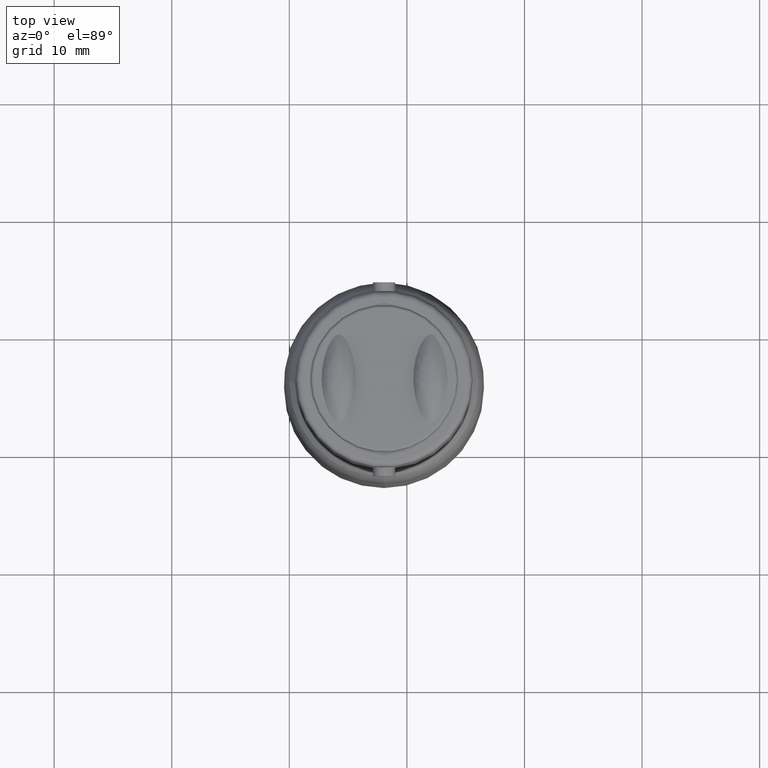
[diagram: clean part render]
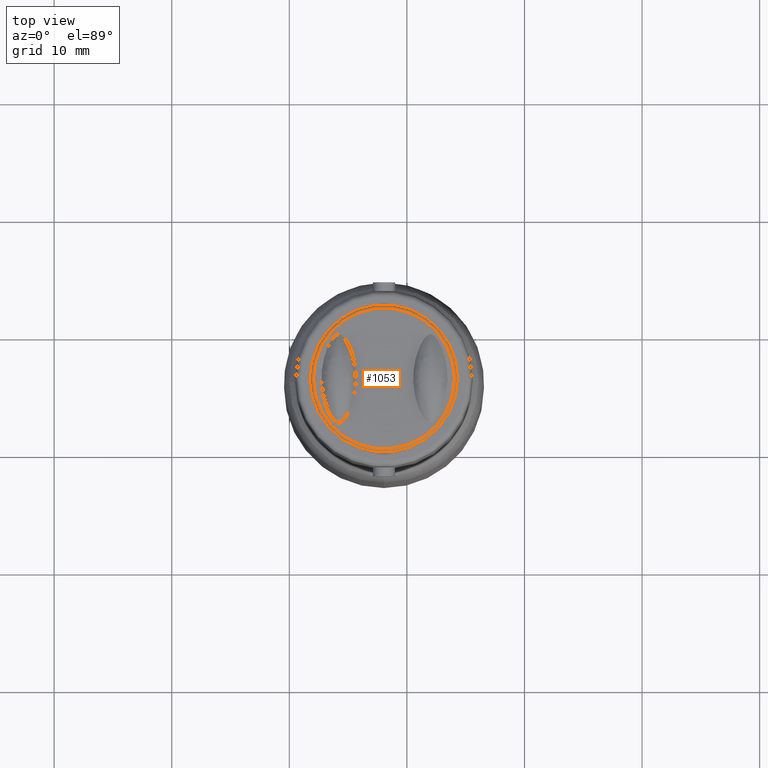
[diagram: same view with one face highlighted and labeled with its STEP entity id]
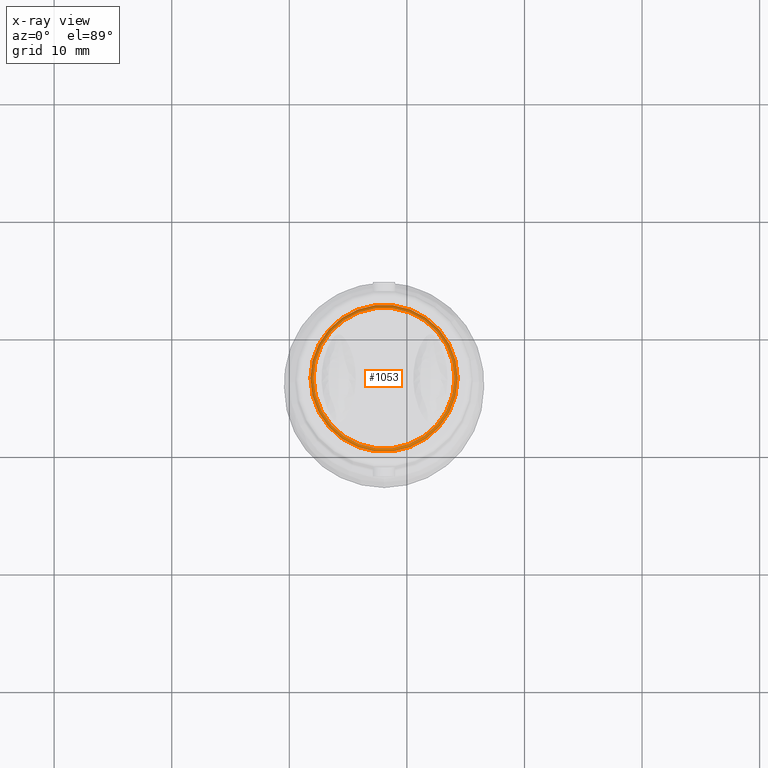
[diagram: x-ray of the same camera — body ghosted, the highlighted face saturated]
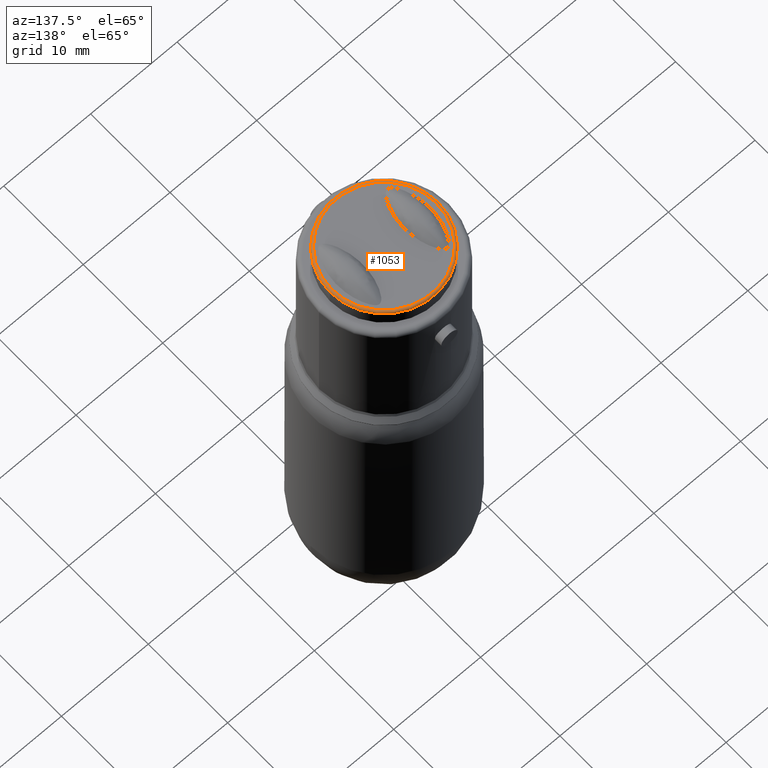
[diagram: same view with one face highlighted and labeled with its STEP entity id]
A machine part, top view. The second image highlights one B-rep face of the part: STEP entity #1053.
The next image is the same camera in x-ray: the body ghosted, the highlighted face saturated — about 0% of this face is hidden behind the body in this view.
A second angle (auxiliary view) of the same face is appended — the face is thin or edge-on in the first view.
In plain terms, the highlighted toroidal blend (fillet) surface has major radius 6 mm and minor (blend) radius 0.25 mm.
Its self-contained STEP definition (entity closure, byte-faithful):
#1026=CARTESIAN_POINT('',(-11.947431124239413,5.734766993235528,17.750000000000000));
#1027=DIRECTION('',(0.0,0.0,-1.0));
#1028=DIRECTION('',(-1.0,0.0,0.0));
#1029=AXIS2_PLACEMENT_3D('',#1026,#1027,#1028);
#1030=TOROIDAL_SURFACE('',#1029,6.0,0.250000000000000);
#1031=CARTESIAN_POINT('',(-5.947431124239414,5.734766993235527,18.0));
#1032=VERTEX_POINT('',#1031);
#1033=CARTESIAN_POINT('',(-11.947431124239413,5.734766993235528,18.0));
#1034=DIRECTION('',(0.0,0.0,-1.0));
#1035=DIRECTION('',(-1.0,0.0,0.0));
#1036=AXIS2_PLACEMENT_3D('',#1033,#1034,#1035);
#1037=CIRCLE('',#1036,6.0);
#1038=EDGE_CURVE('',#1032,#1032,#1037,.T.);
#1039=ORIENTED_EDGE('',*,*,#1038,.T.);
#1040=EDGE_LOOP('',(#1039));
#1041=FACE_OUTER_BOUND('',#1040,.T.);
#1042=CARTESIAN_POINT('',(-5.697431124239413,5.734766993235530,17.750000000000000));
#1043=VERTEX_POINT('',#1042);
#1044=CARTESIAN_POINT('',(-11.947431124239413,5.734766993235528,17.750000000000000));
#1045=DIRECTION('',(0.0,0.0,1.0));
#1046=DIRECTION('',(-1.0,0.0,0.0));
#1047=AXIS2_PLACEMENT_3D('',#1044,#1045,#1046);
#1048=CIRCLE('',#1047,6.250000000000000);
#1049=EDGE_CURVE('',#1043,#1043,#1048,.T.);
#1050=ORIENTED_EDGE('',*,*,#1049,.T.);
#1051=EDGE_LOOP('',(#1050));
#1052=FACE_BOUND('',#1051,.T.);
#1053=ADVANCED_FACE('',(#1041,#1052),#1030,.T.);